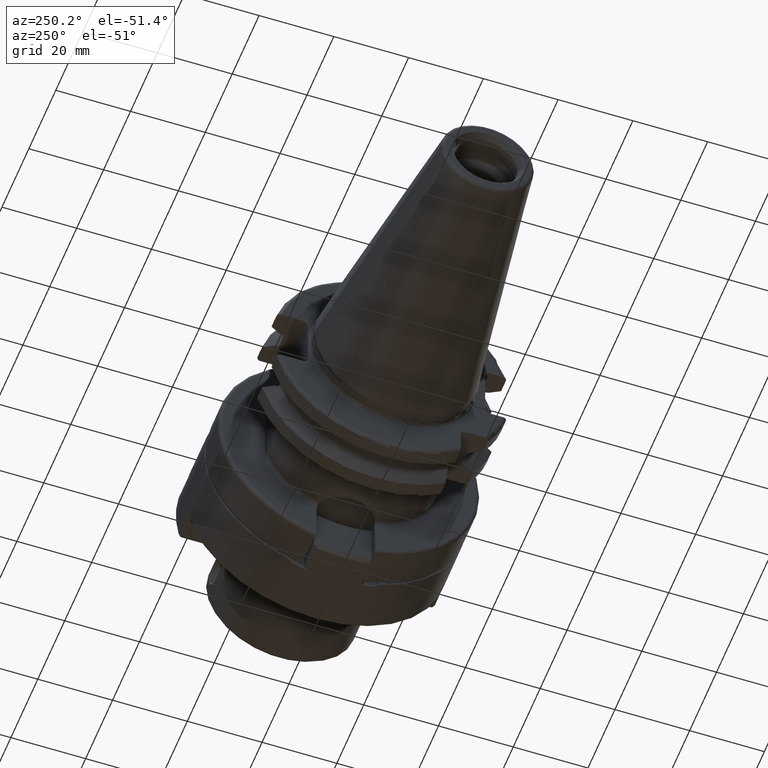
[diagram: clean part render]
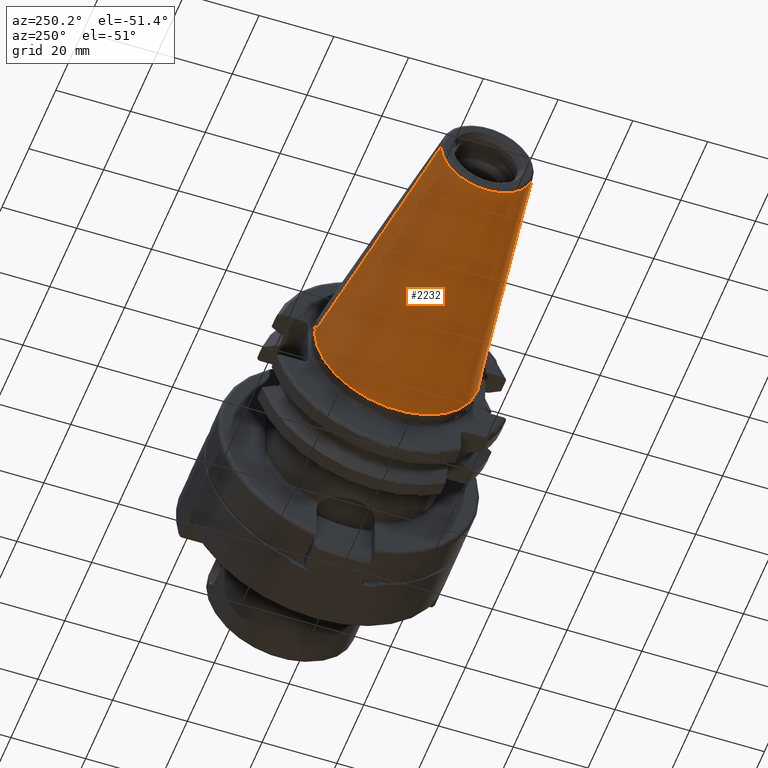
[diagram: same view with one face highlighted and labeled with its STEP entity id]
A machine part, auxiliary view. The second image highlights one B-rep face of the part: STEP entity #2232.
In plain terms, the highlighted conical surface has half-angle 8.298 deg.
Its self-contained STEP definition (entity closure, byte-faithful):
#32=CARTESIAN_POINT('',(-6.743710273571E1,0.E0,0.E0));
#33=DIRECTION('',(-1.E0,0.E0,0.E0));
#34=DIRECTION('',(0.E0,1.E0,0.E0));
#35=AXIS2_PLACEMENT_3D('',#32,#33,#34);
#47=DIRECTION('',(-9.895312636440E-1,-1.443186691705E-1,0.E0));
#48=VECTOR('',#47,6.765568998391E1);
#49=CARTESIAN_POINT('',(-4.896823332305E-1,2.215358204157E1,0.E0));
#50=LINE('',#49,#48);
#51=DIRECTION('',(-9.895312636440E-1,1.443186691705E-1,0.E0));
#52=VECTOR('',#51,6.765568998391E1);
#53=CARTESIAN_POINT('',(-4.896823332305E-1,-2.215358204157E1,0.E0));
#54=LINE('',#53,#52);
#55=CARTESIAN_POINT('',(-4.896823332305E-1,0.E0,0.E0));
#56=DIRECTION('',(-1.E0,0.E0,0.E0));
#57=DIRECTION('',(0.E0,1.E0,0.E0));
#58=AXIS2_PLACEMENT_3D('',#55,#56,#57);
#1808=CARTESIAN_POINT('',(-6.743710273571E1,1.238960290128E1,0.E0));
#1810=VERTEX_POINT('',#1808);
#1812=CARTESIAN_POINT('',(-6.743710273571E1,-1.238960290128E1,0.E0));
#1814=VERTEX_POINT('',#1812);
#1876=CARTESIAN_POINT('',(-4.896823332305E-1,2.215358204157E1,0.E0));
#1877=VERTEX_POINT('',#1876);
#1878=CARTESIAN_POINT('',(-4.896823332305E-1,-2.215358204157E1,0.E0));
#1879=VERTEX_POINT('',#1878);
#2220=CARTESIAN_POINT('',(-3.396339253447E1,0.E0,0.E0));
#2221=DIRECTION('',(1.E0,0.E0,0.E0));
#2222=DIRECTION('',(0.E0,-1.E0,0.E0));
#2223=AXIS2_PLACEMENT_3D('',#2220,#2221,#2222);
#2224=CONICAL_SURFACE('',#2223,1.727159247143E1,8.297826828206E0);
#2225=ORIENTED_EDGE('',*,*,#2210,.T.);
#2226=ORIENTED_EDGE('',*,*,#2187,.T.);
#2227=ORIENTED_EDGE('',*,*,#2214,.F.);
#2229=ORIENTED_EDGE('',*,*,#2228,.F.);
#2230=EDGE_LOOP('',(#2225,#2226,#2227,#2229));
#2231=FACE_OUTER_BOUND('',#2230,.F.);
#2232=ADVANCED_FACE('',(#2231),#2224,.T.);
#36=CIRCLE('',#35,1.238960290128E1);
#59=CIRCLE('',#58,2.215358204157E1);
#2187=EDGE_CURVE('',#1810,#1814,#36,.T.);
#2210=EDGE_CURVE('',#1877,#1810,#50,.T.);
#2214=EDGE_CURVE('',#1879,#1814,#54,.T.);
#2228=EDGE_CURVE('',#1877,#1879,#59,.T.);